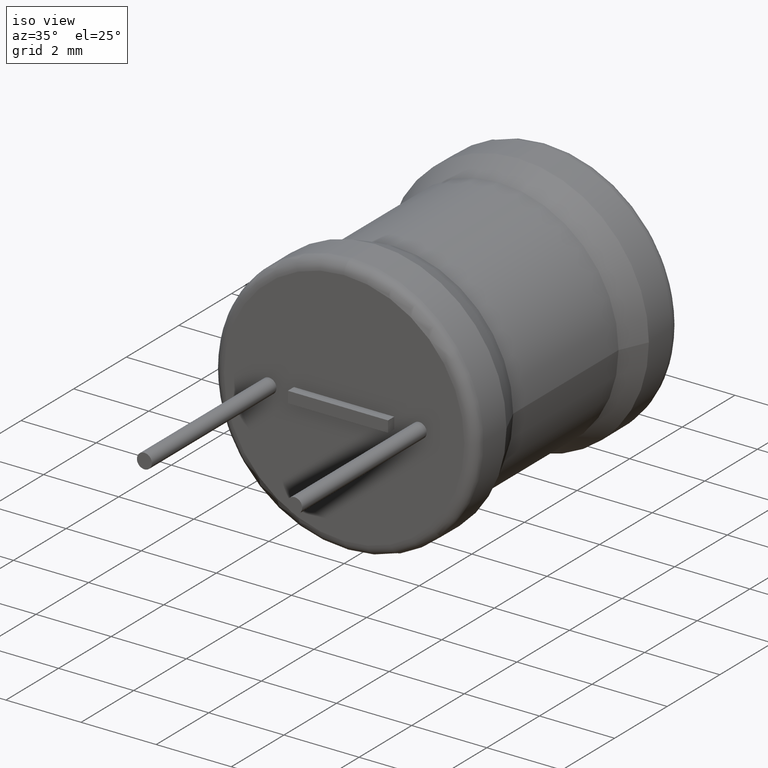
[diagram: clean part render]
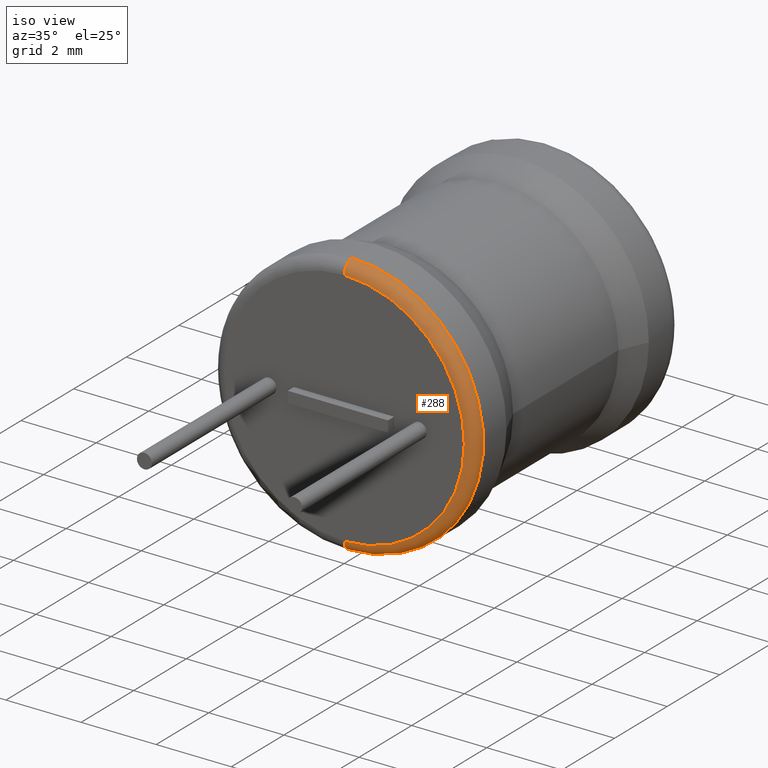
[diagram: same view with one face highlighted and labeled with its STEP entity id]
A machine part, iso view. The second image highlights one B-rep face of the part: STEP entity #288.
In plain terms, the highlighted toroidal blend (fillet) surface has major radius 3.2 mm and minor (blend) radius 0.3 mm.
Its self-contained STEP definition (entity closure, byte-faithful):
#49 = DIRECTION ( 'NONE',  ( 0.0000000000000000000, 0.0000000000000000000, 1.000000000000000000 ) ) ;
#161 = VERTEX_POINT ( 'NONE', #241 ) ;
#219 = EDGE_CURVE ( 'NONE', #161, #2160, #1598, .T. ) ;
#241 = CARTESIAN_POINT ( 'NONE',  ( 4.286263797015735600E-016, 0.2999999999999999300, 3.500000000000000000 ) ) ;
#243 = CARTESIAN_POINT ( 'NONE',  ( 4.102566777143633300E-016, 0.0000000000000000000, -3.200000000000000200 ) ) ;
#288 = ADVANCED_FACE ( 'NONE', ( #1282 ), #1194, .T. ) ;
#311 = CARTESIAN_POINT ( 'NONE',  ( 0.0000000000000000000, 0.0000000000000000000, 3.200000000000000200 ) ) ;
#334 = AXIS2_PLACEMENT_3D ( 'NONE', #1130, #1350, #1604 ) ;
#415 = CIRCLE ( 'NONE', #2449, 0.2999999999999999300 ) ;
#517 = CARTESIAN_POINT ( 'NONE',  ( 0.0000000000000000000, 0.2999999999999999300, 3.200000000000000200 ) ) ;
#731 = DIRECTION ( 'NONE',  ( -1.000000000000000000, 0.0000000000000000000, 0.0000000000000000000 ) ) ;
#748 = ORIENTED_EDGE ( 'NONE', *, *, #1418, .F. ) ;
#879 = DIRECTION ( 'NONE',  ( 0.0000000000000000000, 0.0000000000000000000, 1.000000000000000000 ) ) ;
#881 = AXIS2_PLACEMENT_3D ( 'NONE', #2059, #1858, #2113 ) ;
#882 = VERTEX_POINT ( 'NONE', #311 ) ;
#914 = CIRCLE ( 'NONE', #2507, 3.200000000000000200 ) ;
#1130 = CARTESIAN_POINT ( 'NONE',  ( 3.918869757271530500E-016, 0.2999999999999999300, -3.200000000000000200 ) ) ;
#1141 = DIRECTION ( 'NONE',  ( 0.0000000000000000000, 0.0000000000000000000, 1.000000000000000000 ) ) ;
#1194 = TOROIDAL_SURFACE ( 'NONE', #881, 3.200000000000000200, 0.2999999999999999900 ) ;
#1222 = CIRCLE ( 'NONE', #334, 0.2999999999999999300 ) ;
#1282 = FACE_OUTER_BOUND ( 'NONE', #2292, .T. ) ;
#1350 = DIRECTION ( 'NONE',  ( 1.000000000000000000, -0.0000000000000000000, 1.224646799147353200E-016 ) ) ;
#1353 = ORIENTED_EDGE ( 'NONE', *, *, #2598, .T. ) ;
#1418 = EDGE_CURVE ( 'NONE', #882, #161, #415, .T. ) ;
#1490 = EDGE_CURVE ( 'NONE', #2863, #882, #914, .T. ) ;
#1598 = CIRCLE ( 'NONE', #2941, 3.500000000000000000 ) ;
#1604 = DIRECTION ( 'NONE',  ( 1.224646799147353200E-016, 0.0000000000000000000, -1.000000000000000000 ) ) ;
#1858 = DIRECTION ( 'NONE',  ( 0.0000000000000000000, 1.000000000000000000, 0.0000000000000000000 ) ) ;
#1954 = ORIENTED_EDGE ( 'NONE', *, *, #219, .F. ) ;
#2059 = CARTESIAN_POINT ( 'NONE',  ( 0.0000000000000000000, 0.2999999999999999300, 0.0000000000000000000 ) ) ;
#2113 = DIRECTION ( 'NONE',  ( 0.0000000000000000000, 0.0000000000000000000, 1.000000000000000000 ) ) ;
#2160 = VERTEX_POINT ( 'NONE', #2466 ) ;
#2292 = EDGE_LOOP ( 'NONE', ( #2578, #1353, #1954, #748 ) ) ;
#2449 = AXIS2_PLACEMENT_3D ( 'NONE', #517, #731, #49 ) ;
#2466 = CARTESIAN_POINT ( 'NONE',  ( 0.0000000000000000000, 0.2999999999999999300, -3.500000000000000000 ) ) ;
#2507 = AXIS2_PLACEMENT_3D ( 'NONE', #2965, #2937, #879 ) ;
#2526 = DIRECTION ( 'NONE',  ( 0.0000000000000000000, 1.000000000000000000, 0.0000000000000000000 ) ) ;
#2578 = ORIENTED_EDGE ( 'NONE', *, *, #1490, .F. ) ;
#2598 = EDGE_CURVE ( 'NONE', #2863, #2160, #1222, .T. ) ;
#2723 = CARTESIAN_POINT ( 'NONE',  ( 0.0000000000000000000, 0.2999999999999999300, 0.0000000000000000000 ) ) ;
#2863 = VERTEX_POINT ( 'NONE', #243 ) ;
#2937 = DIRECTION ( 'NONE',  ( -0.0000000000000000000, -1.000000000000000000, -0.0000000000000000000 ) ) ;
#2941 = AXIS2_PLACEMENT_3D ( 'NONE', #2723, #2526, #1141 ) ;
#2965 = CARTESIAN_POINT ( 'NONE',  ( 0.0000000000000000000, 0.0000000000000000000, 0.0000000000000000000 ) ) ;